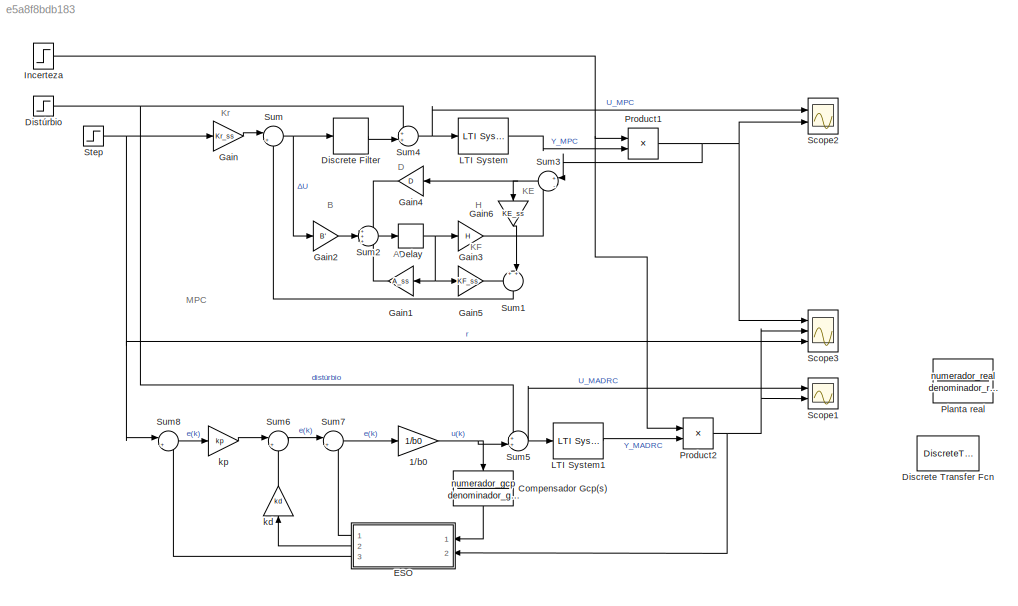
MODEL slx_e5a8f8bdb183
KIND model
CONFIG AbsTol = auto
CONFIG EnableMultiTasking = off
CONFIG FixedStep = auto
CONFIG MaxStep = auto
CONFIG MinStep = auto
CONFIG RelTol = 1e-3
CONFIG SampleTimeConstraint = Unconstrained
CONFIG SolverName = VariableStepAuto
CONFIG StartTime = 0.0
CONFIG StopTime = 14000
BLOCK [Gain] 1//b0
  Gain = 1/b0
BLOCK [TransferFcn] Compensador Gcp(s)
  Denominator = denominador_gcp
  NameLocation = left
  Numerator = numerador_gcp
BLOCK [Delay] Delay
  DelayLength = 1
  InitialCondition = 0
  InputPortMap = u0
  Ports = [1, 1]
  SampleTime = Ts_ss
BLOCK [DiscreteFilter] Discrete Filter
  Denominator = [1 -1]
  FilterStructure = Direct form I
  InputPortMap = u0
  Ports = [1, 1]
  SampleTime = Ts_ss
BLOCK [DiscreteTransferFcn] Discrete Transfer Fcn
  Commented = on
  Denominator = denominador_gcp
  InputPortMap = u0
  NameLocation = left
  Numerator = numerador_gcp
  Ports = [1, 1]
  SampleTime = Ts
BLOCK [Step] Distúrbio
  After = 0.25
  SampleTime = Ts_ss
  Time = 5000
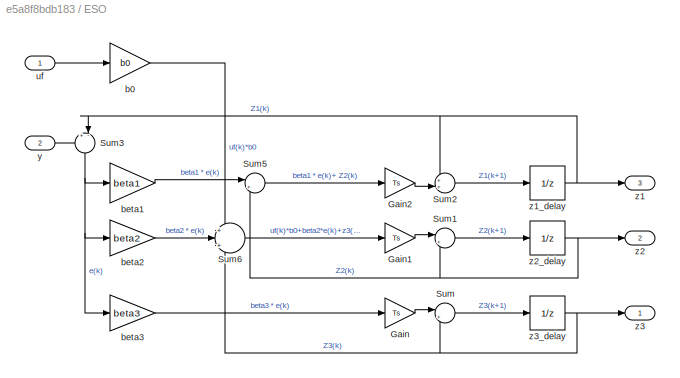
BLOCK [SubSystem] ESO
  NameLocation = top
  Ports = [2, 3]
  RequestExecContextInheritance = off
BLOCK [Gain] ESO/Gain
  Gain = Ts
BLOCK [Gain] ESO/Gain1
  Gain = Ts
BLOCK [Gain] ESO/Gain2
  Gain = Ts
BLOCK [Sum] ESO/Sum
  Inputs = |++
  Ports = [2, 1]
BLOCK [Sum] ESO/Sum1
  Inputs = |++
  Ports = [2, 1]
BLOCK [Sum] ESO/Sum2
  Inputs = ++|
  Ports = [2, 1]
BLOCK [Sum] ESO/Sum3
  Inputs = +-|
  NameLocation = left
  Ports = [2, 1]
BLOCK [Sum] ESO/Sum5
  Inputs = |++
  Ports = [2, 1]
BLOCK [Sum] ESO/Sum6
  Inputs = +|+|+
  Ports = [3, 1]
BLOCK [Gain] ESO/b0
  Gain = b0
BLOCK [Gain] ESO/beta1
  Gain = beta1
BLOCK [Gain] ESO/beta2
  Gain = beta2
BLOCK [Gain] ESO/beta3
  Gain = beta3
BLOCK [Inport] ESO/uf
BLOCK [Inport] ESO/y
  Port = 2
BLOCK [Outport] ESO/z1
  Port = 3
BLOCK [UnitDelay] ESO/z1_delay
  HasFrameUpgradeWarning = on
BLOCK [Outport] ESO/z2
  Port = 2
BLOCK [UnitDelay] ESO/z2_delay
  HasFrameUpgradeWarning = on
BLOCK [Outport] ESO/z3
BLOCK [UnitDelay] ESO/z3_delay
  HasFrameUpgradeWarning = on
BLOCK [Gain] Gain
  Gain = Kr_ss
  Multiplication = Matrix(K*u)
BLOCK [Gain] Gain1
  Gain = A_ss
  Multiplication = Matrix(K*u)
  NameLocation = top
BLOCK [Gain] Gain2
  Gain = B'
  Multiplication = Matrix(K*u)
BLOCK [Gain] Gain3
  Gain = H
  Multiplication = Matrix(K*u)
BLOCK [Gain] Gain4
  Gain = D
  Multiplication = Matrix(K*u)
  NameLocation = top
BLOCK [Gain] Gain5
  Gain = KF_ss
  Multiplication = Matrix(K*u)
BLOCK [Gain] Gain6
  Gain = KE_ss
  Multiplication = Matrix(K*u)
  NameLocation = left
BLOCK [Step] Incerteza
  After = 1.1
  Before = 1
  SampleTime = Ts_ss
  Time = 8500
BLOCK [Reference] LTI System  REF=cstblocks/LTI System
  Ports = [1, 1]
  SourceBlock = cstblocks/LTI System
  SourceProductBaseCode = CT
  SourceType = LTI Block
BLOCK [Reference] LTI System1  REF=cstblocks/LTI System
  Ports = [1, 1]
  SourceBlock = cstblocks/LTI System
  SourceProductBaseCode = CT
  SourceType = LTI Block
BLOCK [TransferFcn] Planta real
  Commented = on
  Denominator = denominador_real
  Numerator = numerador_real
BLOCK [Product] Product1
  Ports = [2, 1]
BLOCK [Product] Product2
  Ports = [2, 1]
BLOCK [Scope] Scope1
  Floating = off
  NumInputPorts = 2
  Ports = [2]
  ScopeSpecificationString = Simulink.scopes.TimeScopeBlockCfg('CurrentConfiguration', extmgr.ConfigurationSet(extmgr.Configuration('Core','General UI',true,'FigureColor',[1 1 1]),extmgr.Configuration('Core','Source UI',true),extmgr.Configuration('Sources','WiredSimulink',true),extmgr.Configuration('Visuals','Time Domain',true,'SerializedDisplays',{struct('MinYLimReal','-0.24728','MaxYLimReal','2.22549','YLabelReal','','MinYL...<+1735ch>
BLOCK [Scope] Scope2
  Floating = off
  NumInputPorts = 2
  Ports = [2]
  ScopeSpecificationString = Simulink.scopes.TimeScopeBlockCfg('CurrentConfiguration', extmgr.ConfigurationSet(extmgr.Configuration('Core','General UI',true,'FigureColor',[1 1 1]),extmgr.Configuration('Core','Source UI',true),extmgr.Configuration('Sources','WiredSimulink',true,'DataLoggingVariableName','ScopeData1'),extmgr.Configuration('Visuals','Time Domain',true,'SerializedDisplays',{struct('MinYLimReal','-7.75517','MaxYLi...<+1855ch>
BLOCK [Scope] Scope3
  Floating = off
  NumInputPorts = 3
  Ports = [3]
  ScopeSpecificationString = Simulink.scopes.TimeScopeBlockCfg('CurrentConfiguration', extmgr.ConfigurationSet(extmgr.Configuration('Core','General UI',true,'FigureColor',[1 1 1]),extmgr.Configuration('Core','Source UI',true),extmgr.Configuration('Sources','WiredSimulink',true,'DataLoggingVariableName','ScopeData1'),extmgr.Configuration('Visuals','Time Domain',true,'SerializedDisplays',{struct('MinYLimReal','-0.21099','MaxYLi...<+1869ch>
BLOCK [Step] Step
  After = ref_final
  Before = ref_inicial
  SampleTime = Ts_ss
  Time = t_degrau
BLOCK [Sum] Sum
  Inputs = |+-
  Ports = [2, 1]
BLOCK [Sum] Sum1
  Inputs = ++|
  NameLocation = left
  Ports = [2, 1]
BLOCK [Sum] Sum2
  Inputs = +++
  Ports = [3, 1]
BLOCK [Sum] Sum3
  Inputs = +|-
  NameLocation = top
  Ports = [2, 1]
BLOCK [Sum] Sum4
  Inputs = ++|
  Ports = [2, 1]
BLOCK [Sum] Sum5
  Inputs = ++|
  Ports = [2, 1]
BLOCK [Sum] Sum6
  Inputs = |+-
  Ports = [2, 1]
BLOCK [Sum] Sum7
  Inputs = |+-
  Ports = [2, 1]
BLOCK [Sum] Sum8
  Inputs = |+-
  Ports = [2, 1]
BLOCK [Gain] kd
  Gain = kd
  NameLocation = right
BLOCK [Gain] kp
  Gain = kp
ANNOTATION (root): A
ANNOTATION (root): D
ANNOTATION (root): B
ANNOTATION (root): H
ANNOTATION (root): K E
ANNOTATION (root): K F
ANNOTATION (root): K r
ANNOTATION (root): MPC
NET 1//b0:1 -> Compensador Gcp(s):1, Sum5:2
LINE Compensador Gcp(s):1 -> ESO:1
NET Delay:1 -> Gain1:1, Gain3:1, Gain5:1
LINE Discrete Filter:1 -> Sum4:2
NET Distúrbio:1 -> Sum4:1, Sum5:1
LINE ESO/Gain1:1 -> ESO/Sum1:1
LINE ESO/Gain2:1 -> ESO/Sum2:2
LINE ESO/Gain:1 -> ESO/Sum:1
LINE ESO/Sum1:1 -> ESO/z2_delay:1
LINE ESO/Sum2:1 -> ESO/z1_delay:1
NET ESO/Sum3:1 -> ESO/beta1:1, ESO/beta2:1, ESO/beta3:1
LINE ESO/Sum5:1 -> ESO/Gain2:1
LINE ESO/Sum6:1 -> ESO/Gain1:1
LINE ESO/Sum:1 -> ESO/z3_delay:1
LINE ESO/b0:1 -> ESO/Sum6:1
LINE ESO/beta1:1 -> ESO/Sum5:1
LINE ESO/beta2:1 -> ESO/Sum6:2
LINE ESO/beta3:1 -> ESO/Gain:1
LINE ESO/uf:1 -> ESO/b0:1
LINE ESO/y:1 -> ESO/Sum3:1
NET ESO/z1_delay:1 -> ESO/Sum2:1, ESO/Sum3:2, ESO/z1:1
NET ESO/z2_delay:1 -> ESO/Sum1:2, ESO/Sum5:2, ESO/z2:1
NET ESO/z3_delay:1 -> ESO/Sum6:3, ESO/Sum:2, ESO/z3:1
LINE ESO:1 -> Sum7:2
LINE ESO:2 -> kd:1
LINE ESO:3 -> Sum8:2
LINE Gain1:1 -> Sum2:3
LINE Gain2:1 -> Sum2:2
LINE Gain3:1 -> Sum3:2
LINE Gain4:1 -> Sum2:1
LINE Gain5:1 -> Sum1:1
LINE Gain6:1 -> Sum1:2
LINE Gain:1 -> Sum:1
NET Incerteza:1 -> Product1:1, Product2:1
LINE LTI System1:1 -> Product2:2
LINE LTI System:1 -> Product1:2
NET Product1:1 -> Scope2:2, Scope3:1, Sum3:1
NET Product2:1 -> ESO:2, Scope1:2, Scope3:2
NET Step:1 -> Gain:1, Scope3:3, Sum8:1
LINE Sum1:1 -> Sum:2
LINE Sum2:1 -> Delay:1
NET Sum3:1 -> Gain4:1, Gain6:1
NET Sum4:1 -> LTI System:1, Scope2:1
NET Sum5:1 -> LTI System1:1, Scope1:1
LINE Sum6:1 -> Sum7:1
LINE Sum7:1 -> 1//b0:1
LINE Sum8:1 -> kp:1
NET Sum:1 -> Discrete Filter:1, Gain2:1
LINE kd:1 -> Sum6:2
LINE kp:1 -> Sum6:1
note: NET lines group one-source signal fan-out (src -> all destinations, sorted); 1:1 wires keep LINE
